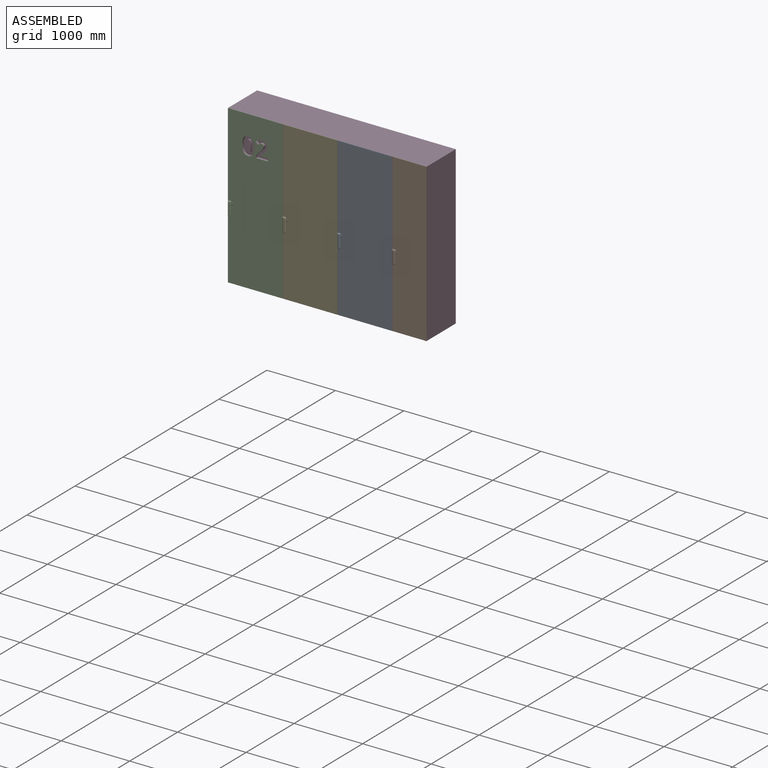
[diagram: assembled view]
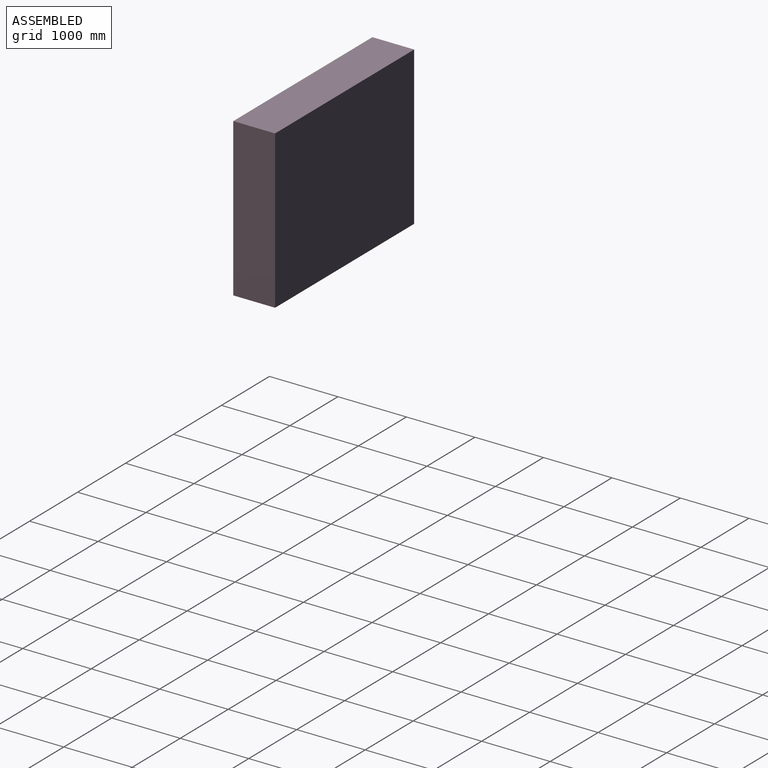
[diagram: assembled view, second angle]
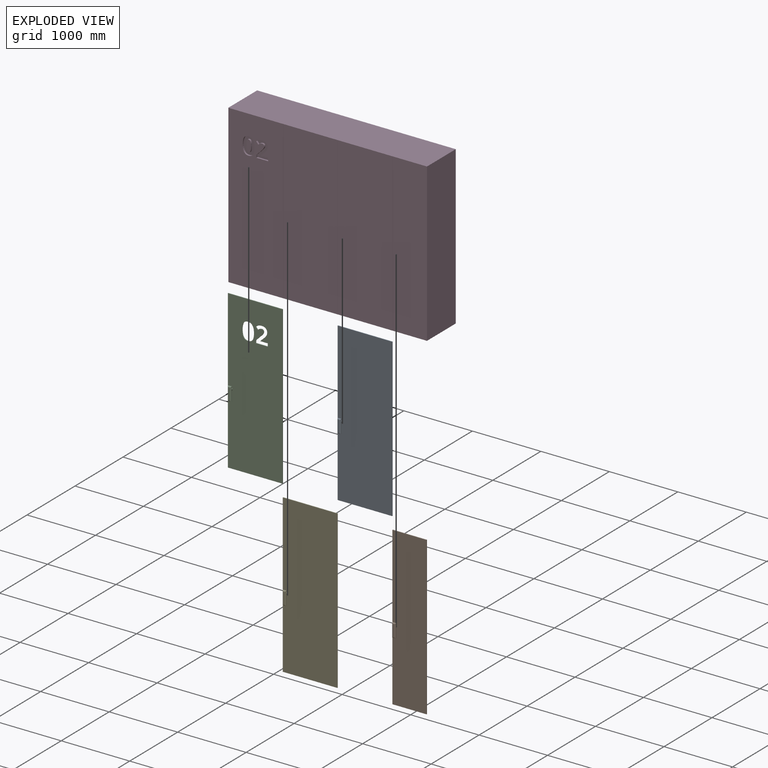
[diagram: exploded view]
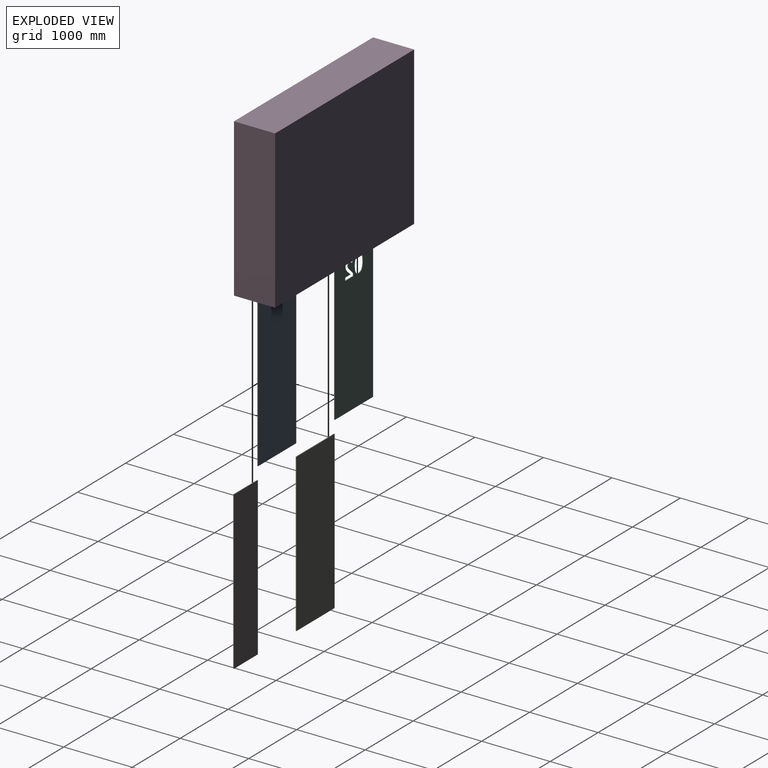
[diagram: exploded view, second angle]
ASSEMBLY  parts=5 mates=4
PART A: 17 faces, bbox 796x55x2300 mm
  f0: cylinder r=20mm len=40mm, axis (0,1,0), area 3141.6mm2, adj f6,f15
  f1: plane 50x5mm, normal (0,0,-1), area 250mm2, adj f2,f4,f6,f7
  f2: plane 200x5mm, normal (1,0,0), area 1000mm2, adj f1,f3,f6,f8
  f3: plane 50x5mm, normal (0,0,1), area 250mm2, adj f2,f4,f6,f10
  f4: plane 200x5mm, normal (-1,0,0), area 1000mm2, adj f1,f3,f6,f9
  f5: plane 170x20mm, normal (0,-1,0), area 3400mm2, adj f7,f8,f9,f10
  f6: plane 200x50mm, normal (0,1,0), area 8743.4mm2, adj f0,f1,f2,f3,f4
  f7: cylinder r=15mm len=50mm, axis (-1,0,0), area 921.2mm2, adj f1,f5,f8,f9
  f8: cylinder r=15mm len=200mm, axis (0,0,-1), area 4455.5mm2, adj f2,f5,f7,f10
  f9: cylinder r=15mm len=200mm, axis (0,0,1), area 4455.5mm2, adj f4,f5,f7,f10
  f10: cylinder r=15mm len=50mm, axis (1,0,0), area 921.2mm2, adj f3,f5,f8,f9
  f11: plane 796x10mm, normal (0,0,1), area 7960mm2, adj f12,f14,f15,f16
  f12: plane 2300x10mm, normal (-1,0,0), area 23000mm2, adj f11,f13,f15,f16
  f13: plane 796x10mm, normal (0,0,-1), area 7960mm2, adj f12,f14,f15,f16
  f14: plane 2300x10mm, normal (1,0,0), area 23000mm2, adj f11,f13,f15,f16
  f15: plane 2300x796mm, normal (0,-1,0), area 1829543.4mm2, adj f0,f11,f12,f13,f14
  f16: plane 2300x796mm, normal (0,1,0), area 1830800mm2, adj f11,f12,f13,f14
PART B: 17 faces, bbox 498x55x2300 mm
  f0: plane 498x10mm, normal (0,0,1), area 4980mm2, adj f1,f3,f4,f5
  f1: plane 2300x10mm, normal (-1,0,0), area 23000mm2, adj f0,f2,f4,f5
  f2: plane 498x10mm, normal (0,0,-1), area 4980mm2, adj f1,f3,f4,f5
  f3: plane 2300x10mm, normal (1,0,0), area 23000mm2, adj f0,f2,f4,f5
  f4: plane 2300x498mm, normal (0,-1,0), area 1144143.4mm2, adj f0,f1,f2,f3,f6
  f5: plane 2300x498mm, normal (0,1,0), area 1145400mm2, adj f0,f1,f2,f3
  f6: cylinder r=20mm len=40mm, axis (0,1,0), area 3141.6mm2, adj f4,f12
  f7: plane 50x5mm, normal (0,0,-1), area 250mm2, adj f8,f10,f12,f13
  f8: plane 200x5mm, normal (1,0,0), area 1000mm2, adj f7,f9,f12,f14
  f9: plane 50x5mm, normal (0,0,1), area 250mm2, adj f8,f10,f12,f16
  f10: plane 200x5mm, normal (-1,0,0), area 1000mm2, adj f7,f9,f12,f15
  f11: plane 170x20mm, normal (0,-1,0), area 3400mm2, adj f13,f14,f15,f16
  f12: plane 200x50mm, normal (0,1,0), area 8743.4mm2, adj f6,f7,f8,f9,f10
  f13: cylinder r=15mm len=50mm, axis (-1,0,0), area 921.2mm2, adj f7,f11,f14,f15
  f14: cylinder r=15mm len=200mm, axis (0,0,-1), area 4455.5mm2, adj f8,f11,f13,f16
  f15: cylinder r=15mm len=200mm, axis (0,0,1), area 4455.5mm2, adj f10,f11,f13,f16
  f16: cylinder r=15mm len=50mm, axis (1,0,0), area 921.2mm2, adj f9,f11,f14,f15
PART C: 49 faces, bbox 798x55x2300 mm
  f0: cylinder r=20mm len=40mm, axis (0,1,0), area 3141.6mm2, adj f6,f47
  f1: plane 200x5mm, normal (1,0,0), area 1000mm2, adj f2,f4,f6,f7
  f2: plane 50x5mm, normal (0,0,1), area 250mm2, adj f1,f3,f6,f8
  f3: plane 200x5mm, normal (-1,0,0), area 1000mm2, adj f2,f4,f6,f10
  f4: plane 50x5mm, normal (0,0,-1), area 250mm2, adj f1,f3,f6,f9
  f5: plane 170x20mm, normal (0,-1,0), area 3400mm2, adj f7,f8,f9,f10
  f6: plane 200x50mm, normal (0,1,0), area 8743.4mm2, adj f0,f1,f2,f3,f4
  f7: cylinder r=15mm len=200mm, axis (0,0,-1), area 4455.5mm2, adj f1,f5,f8,f9
  f8: cylinder r=15mm len=50mm, axis (1,0,0), area 921.2mm2, adj f2,f5,f7,f10
  f9: cylinder r=15mm len=50mm, axis (-1,0,0), area 921.2mm2, adj f4,f5,f7,f10
  f10: cylinder r=15mm len=200mm, axis (0,0,1), area 4455.5mm2, adj f3,f5,f8,f9
  f11: plane 44.13x10mm, normal (-1,0,0), area 441.3mm2, adj f12,f46,f47,f48
  f12: plane 173.37x10mm, normal (0,0,1), area 1733.7mm2, adj f11,f13,f47,f48
  f13: plane 36.48x10mm, normal (1,0,0), area 364.8mm2, adj f12,f14,f47,f48
  f14: plane 62.91x62.26mm, normal (0.71,0,-0.7), area 885.1mm2, adj f13,f15,f47,f48
  f15: extruded ~39.27x36.15mm, area 534mm2, adj f14,f16,f47,f48
  f16: extruded ~20.27x12.21mm, area 237.4mm2, adj f15,f17,f47,f48
  f17: extruded ~19.32x10mm, area 198.1mm2, adj f16,f18,f47,f48
  f18: extruded ~22.23x10mm, area 244.6mm2, adj f17,f19,f47,f48
  f19: extruded ~21.98x10mm, area 237mm2, adj f18,f20,f47,f48
  f20: extruded ~27.95x10mm, area 289.8mm2, adj f19,f21,f47,f48
  f21: extruded ~28.33x18.84mm, area 341mm2, adj f20,f22,f47,f48
  f22: plane 33.76x28.5mm, normal (0.76,0,0.65), area 441.8mm2, adj f21,f23,f47,f48
  f23: extruded ~30.34x22.07mm, area 375.8mm2, adj f22,f24,f47,f48
  f24: extruded ~26.3x10mm, area 281.8mm2, adj f23,f25,f47,f48
  f25: extruded ~31.89x10mm, area 321.5mm2, adj f24,f26,f47,f48
  f26: extruded ~41.04x10mm, area 422.5mm2, adj f25,f27,f47,f48
  f27: extruded ~27.66x23.75mm, area 369.4mm2, adj f26,f28,f47,f48
  f28: extruded ~34.93x10mm, area 368.1mm2, adj f27,f29,f47,f48
  f29: extruded ~32.16x10mm, area 329.2mm2, adj f28,f30,f47,f48
  f30: extruded ~30.78x18.67mm, area 361.3mm2, adj f29,f31,f47,f48
  f31: extruded ~44.97x44.51mm, area 633.2mm2, adj f30,f32,f47,f48
  f32: plane 31.92x30.02mm, normal (-0.69,0,0.73), area 438.1mm2, adj f31,f33,f47,f48
  f33: plane 10x2.33mm, normal (-1,0,0), area 23.3mm2, adj f32,f46,f47,f48
  f34: extruded ~95.37x21.96mm, area 992.5mm2, adj f35,f44,f47,f48
  f35: extruded ~96.16x21.28mm, area 998.6mm2, adj f34,f36,f47,f48
  f36: extruded ~65.57x31.24mm, area 758.5mm2, adj f35,f37,f47,f48
  f37: extruded ~64.73x32.24mm, area 755.7mm2, adj f36,f38,f47,f48
  f38: extruded ~95.15x21.79mm, area 990mm2, adj f37,f39,f47,f48
  f39: extruded ~96.81x21.22mm, area 1004.9mm2, adj f38,f40,f47,f48
  f40: extruded ~65.3x31.13mm, area 755.5mm2, adj f39,f44,f47,f48
  f41: plane 2300x10mm, normal (1,0,0), area 23000mm2, adj f42,f45,f47,f48
  f42: plane 798x10mm, normal (0,0,1), area 7980mm2, adj f41,f43,f47,f48
  f43: plane 2300x10mm, normal (-1,0,0), area 23000mm2, adj f42,f45,f47,f48
  f44: extruded ~64.89x32.57mm, area 758.9mm2, adj f34,f40,f47,f48
  f45: plane 798x10mm, normal (0,0,-1), area 7980mm2, adj f41,f43,f47,f48
  f46: plane 108.07x10mm, normal (0,0,-1), area 1080.7mm2, adj f11,f33,f47,f48
  f47: plane 2300x798mm, normal (0,-1,0), area 1774295.9mm2, adj f0,f11,f12,f13,f14,f15,f16,f17
  f48: plane 2300x798mm, normal (0,1,0), area 1775552.5mm2, adj f11,f12,f13,f14,f15,f16,f17,f18
PART D: 61 faces, bbox 2900x600x2300 mm
  f0: plane 2300x798mm, normal (0,-1,0), area 1775552.5mm2, adj f1,f2,f6,f17,f25,f26,f27,f28
  f1: plane 2900x600mm, normal (0,0,-1), area 1739976mm2, adj f0,f3,f4,f5,f6,f7,f8,f9
  f2: plane 2900x600mm, normal (0,0,1), area 1739976mm2, adj f0,f3,f4,f5,f6,f7,f8,f9
  f3: plane 2300x796mm, normal (0,-1,0), area 1830800mm2, adj f1,f2,f14,f16
  f4: plane 2300x796mm, normal (0,-1,0), area 1830800mm2, adj f1,f2,f11,f13
  f5: plane 2300x498mm, normal (0,-1,0), area 1145400mm2, adj f1,f2,f7,f10
  f6: plane 2300x600mm, normal (-1,0,0), area 1380000mm2, adj f0,f1,f2,f8
  f7: plane 2300x600mm, normal (1,0,0), area 1380000mm2, adj f1,f2,f5,f8
  f8: plane 2900x2300mm, normal (0,1,0), area 6670000mm2, adj f1,f2,f6,f7
  f9: plane 2300x4mm, normal (0,-1,0), area 9200mm2, adj f1,f2,f10,f11
  f10: plane 2300x2mm, normal (-1,0,0), area 4600mm2, adj f1,f2,f5,f9
  f11: plane 2300x2mm, normal (1,0,0), area 4600mm2, adj f1,f2,f4,f9
  f12: plane 2300x4mm, normal (0,-1,0), area 9200mm2, adj f1,f2,f13,f14
  f13: plane 2300x2mm, normal (-1,0,0), area 4600mm2, adj f1,f2,f4,f12
  f14: plane 2300x2mm, normal (1,0,0), area 4600mm2, adj f1,f2,f3,f12
  f15: plane 2300x4mm, normal (0,-1,0), area 9200mm2, adj f1,f2,f16,f17
  f16: plane 2300x2mm, normal (-1,0,0), area 4600mm2, adj f1,f2,f3,f15
  f17: plane 2300x2mm, normal (1,0,0), area 4600mm2, adj f0,f1,f2,f15
  f18: extruded ~65.35x25mm, area 1653.8mm2, adj f19,f33,f34,f60
  f19: extruded ~65.57x25mm, area 1659.6mm2, adj f18,f20,f34,f60
  f20: extruded ~26.46x25mm, area 887mm2, adj f19,f21,f34,f60
  f21: extruded ~26.38x25mm, area 883.6mm2, adj f20,f22,f34,f60
  f22: extruded ~65.57x25mm, area 1661.1mm2, adj f21,f23,f34,f60
  f23: extruded ~65.11x25mm, area 1649mm2, adj f22,f24,f34,f60
  f24: extruded ~26.49x25mm, area 888mm2, adj f23,f33,f34,f60
  f25: extruded ~96.16x25mm, area 2496.6mm2, adj f0,f26,f32,f34
  f26: extruded ~95.37x25mm, area 2481.3mm2, adj f0,f25,f27,f34
  f27: extruded ~64.89x32.57mm, area 1897.2mm2, adj f0,f26,f28,f34
  f28: extruded ~65.3x31.13mm, area 1888.7mm2, adj f0,f27,f29,f34
  f29: extruded ~96.81x25mm, area 2512.3mm2, adj f0,f28,f30,f34
  f30: extruded ~95.15x25mm, area 2475mm2, adj f0,f29,f31,f34
  f31: extruded ~64.73x32.24mm, area 1889.3mm2, adj f0,f30,f32,f34
  f32: extruded ~65.57x31.24mm, area 1896.3mm2, adj f0,f25,f31,f34
  f33: extruded ~26.54x25mm, area 886.4mm2, adj f18,f24,f34,f60
  f34: plane 255.34x173.37mm, normal (0,-1,0), area 26929.8mm2, adj f18,f19,f20,f21,f22,f23,f24,f25
  f35: plane 173.37x25mm, normal (0,0,1), area 4334.3mm2, adj f0,f36,f58,f59
  f36: plane 44.13x25mm, normal (-1,0,0), area 1103.3mm2, adj f0,f35,f37,f59
  f37: plane 108.07x25mm, normal (0,0,-1), area 2701.8mm2, adj f0,f36,f38,f59
  f38: plane 25x2.33mm, normal (-1,0,0), area 58.4mm2, adj f0,f37,f39,f59
  f39: plane 31.92x30.02mm, normal (-0.69,0,0.73), area 1095.4mm2, adj f0,f38,f40,f59
  f40: extruded ~44.97x44.51mm, area 1583.1mm2, adj f0,f39,f41,f59
  f41: extruded ~30.78x25mm, area 903.2mm2, adj f0,f40,f42,f59
  f42: extruded ~32.16x25mm, area 823.1mm2, adj f0,f41,f43,f59
  f43: extruded ~34.93x25mm, area 920.2mm2, adj f0,f42,f44,f59
  f44: extruded ~27.66x25mm, area 923.4mm2, adj f0,f43,f45,f59
  f45: extruded ~41.04x25mm, area 1056.3mm2, adj f0,f44,f46,f59
  f46: extruded ~31.89x25mm, area 803.9mm2, adj f0,f45,f47,f59
  f47: extruded ~26.3x25mm, area 704.4mm2, adj f0,f46,f48,f59
  f48: extruded ~30.34x25mm, area 939.6mm2, adj f0,f47,f49,f59
  f49: plane 33.76x28.5mm, normal (0.76,0,0.65), area 1104.5mm2, adj f0,f48,f50,f59
  f50: extruded ~28.33x25mm, area 852.6mm2, adj f0,f49,f51,f59
  f51: extruded ~27.95x25mm, area 724.5mm2, adj f0,f50,f52,f59
  f52: extruded ~25x21.98mm, area 592.4mm2, adj f0,f51,f53,f59
  f53: extruded ~25x22.23mm, area 611.5mm2, adj f0,f52,f54,f59
  f54: extruded ~25x19.32mm, area 495.1mm2, adj f0,f53,f55,f59
  f55: extruded ~25x20.27mm, area 593.6mm2, adj f0,f54,f56,f59
  f56: extruded ~39.27x36.15mm, area 1335mm2, adj f0,f55,f57,f59
  f57: plane 62.91x62.26mm, normal (0.71,0,-0.7), area 2212.8mm2, adj f0,f56,f58,f59
  f58: plane 36.48x25mm, normal (1,0,0), area 911.9mm2, adj f0,f35,f57,f59
  f59: plane 251.54x174.02mm, normal (0,-1,0), area 22909.2mm2, adj f35,f36,f37,f38,f39,f40,f41,f42
  f60: plane 170.61x69.05mm, normal (0,-1,0), area 10008.6mm2, adj f18,f19,f20,f21,f22,f23,f24,f33
PART E: 17 faces, bbox 796x55x2300 mm
  f0: cylinder r=20mm len=40mm, axis (0,1,0), area 3141.6mm2, adj f6,f15
  f1: plane 50x5mm, normal (0,0,-1), area 250mm2, adj f2,f4,f6,f7
  f2: plane 200x5mm, normal (1,0,0), area 1000mm2, adj f1,f3,f6,f8
  f3: plane 50x5mm, normal (0,0,1), area 250mm2, adj f2,f4,f6,f10
  f4: plane 200x5mm, normal (-1,0,0), area 1000mm2, adj f1,f3,f6,f9
  f5: plane 170x20mm, normal (0,-1,0), area 3400mm2, adj f7,f8,f9,f10
  f6: plane 200x50mm, normal (0,1,0), area 8743.4mm2, adj f0,f1,f2,f3,f4
  f7: cylinder r=15mm len=50mm, axis (-1,0,0), area 921.2mm2, adj f1,f5,f8,f9
  f8: cylinder r=15mm len=200mm, axis (0,0,-1), area 4455.5mm2, adj f2,f5,f7,f10
  f9: cylinder r=15mm len=200mm, axis (0,0,1), area 4455.5mm2, adj f4,f5,f7,f10
  f10: cylinder r=15mm len=50mm, axis (1,0,0), area 921.2mm2, adj f3,f5,f8,f9
  f11: plane 796x10mm, normal (0,0,1), area 7960mm2, adj f12,f14,f15,f16
  f12: plane 2300x10mm, normal (-1,0,0), area 23000mm2, adj f11,f13,f15,f16
  f13: plane 796x10mm, normal (0,0,-1), area 7960mm2, adj f12,f14,f15,f16
  f14: plane 2300x10mm, normal (1,0,0), area 23000mm2, adj f11,f13,f15,f16
  f15: plane 2300x796mm, normal (0,-1,0), area 1829543.4mm2, adj f0,f11,f12,f13,f14
  f16: plane 2300x796mm, normal (0,1,0), area 1830800mm2, adj f11,f12,f13,f14
PLACE A rot(axis=(0,0,1),0deg) t=(-1450,300,0)mm
PLACE B rot(axis=(0,0,-1),0deg) t=(-1450,300,0)mm
PLACE C t=(-1450,300,0)mm
PLACE D t=(-1450,300,0)mm
PLACE E t=(-1450,300,0)mm
MATE revolute E.f11 <-> D.f2  axis (0,0,-1) through (148,-300,2300)mm
MATE revolute D.f2 <-> A.f11  axis (0,0,-1) through (948,-300,2300)mm
MATE revolute D.f2 <-> C.f42  axis (0,0,-1) through (-652,-300,2300)mm
MATE revolute D.f2 <-> B.f0  axis (0,0,1) through (1450,-300,2300)mm
